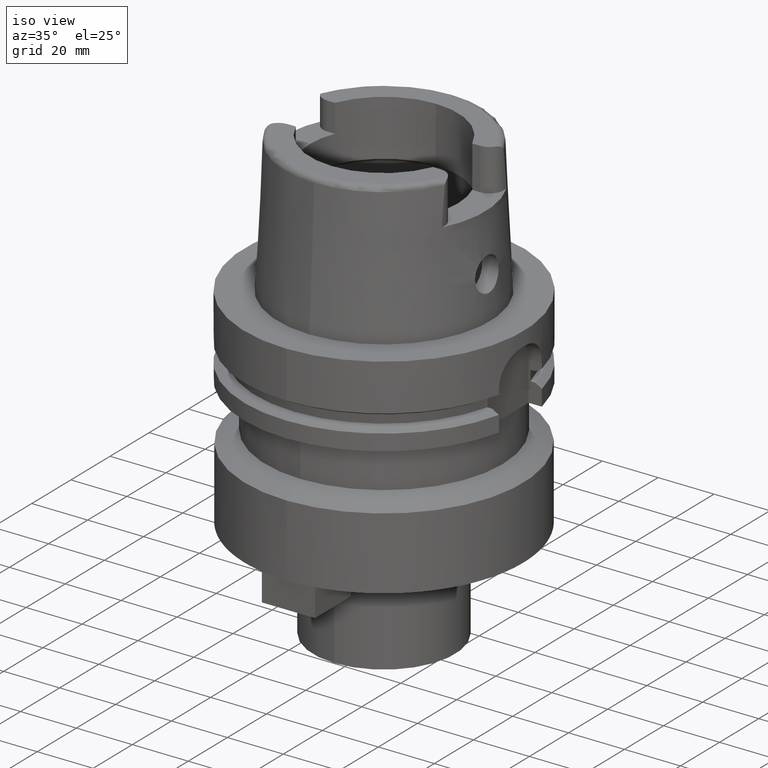
[diagram: clean part render]
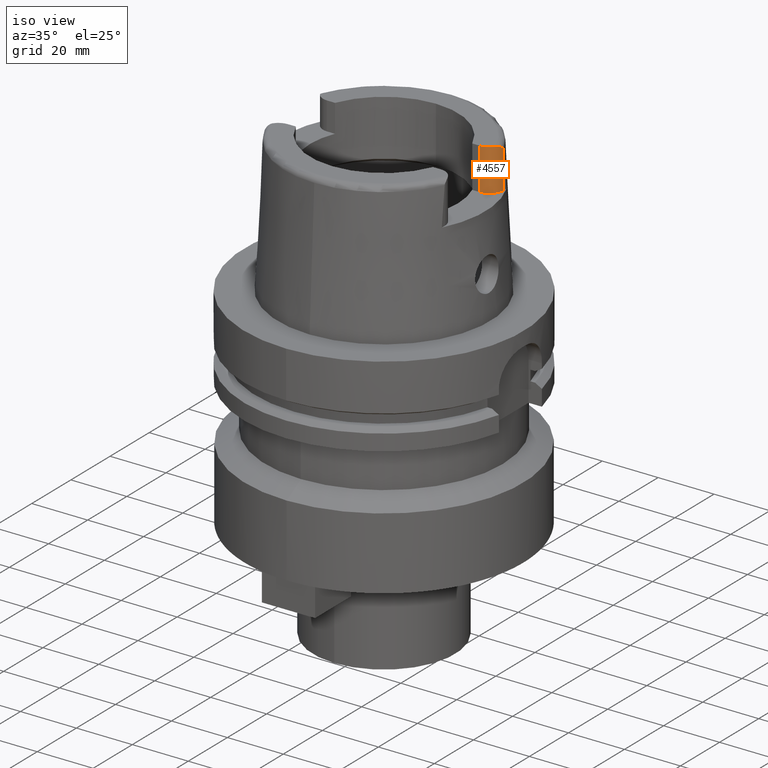
[diagram: same view with one face highlighted and labeled with its STEP entity id]
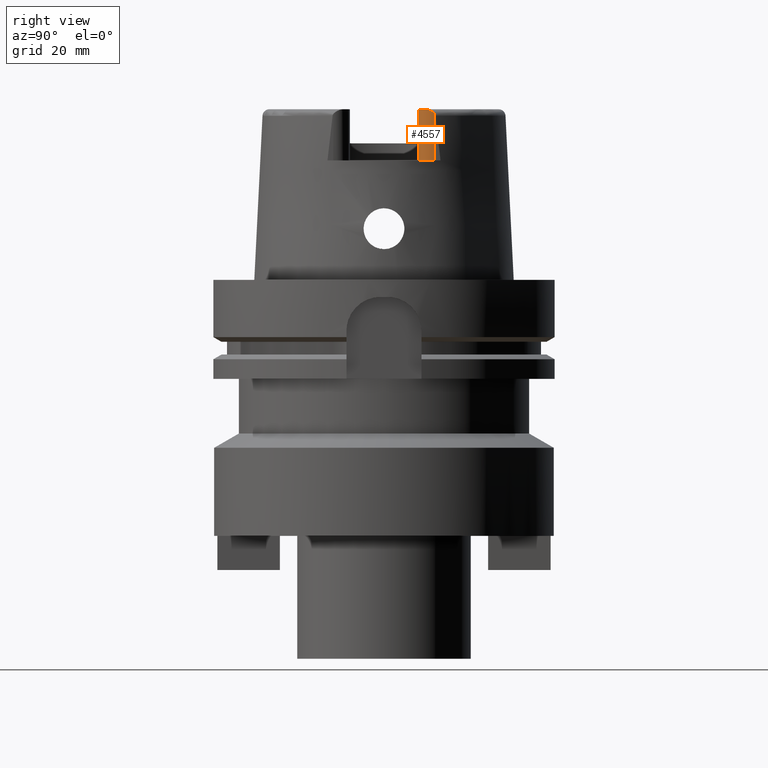
[diagram: same view with one face highlighted and labeled with its STEP entity id]
A machine part, iso view. The second image highlights one B-rep face of the part: STEP entity #4557.
A second angle (right view) of the same face is appended — the face is thin or edge-on in the first view.
In plain terms, the highlighted cylindrical surface (edge-blend (fillet) strip) has radius 4.88 mm, axis along (0, 0, 1).
Its self-contained STEP definition (entity closure, byte-faithful):
#42=CARTESIAN_POINT('',(2.737E1,1.489E1,5.E1));
#43=DIRECTION('',(0.E0,0.E0,-1.E0));
#44=DIRECTION('',(8.163632566569E-1,-5.775387720150E-1,0.E0));
#45=AXIS2_PLACEMENT_3D('',#42,#43,#44);
#424=CARTESIAN_POINT('',(2.737E1,1.489E1,3.5E1));
#425=DIRECTION('',(0.E0,0.E0,1.E0));
#426=DIRECTION('',(0.E0,-1.E0,0.E0));
#427=AXIS2_PLACEMENT_3D('',#424,#425,#426);
#2352=DIRECTION('',(2.098162679624E-14,0.E0,-1.E0));
#2353=VECTOR('',#2352,1.354599893822E1);
#2354=CARTESIAN_POINT('',(3.225E1,1.489E1,4.854599893822E1));
#2355=LINE('',#2354,#2353);
#2359=DIRECTION('',(0.E0,0.E0,1.E0));
#2360=VECTOR('',#2359,1.5E1);
#2361=CARTESIAN_POINT('',(2.737E1,1.001E1,3.5E1));
#2362=LINE('',#2361,#2360);
#2413=CARTESIAN_POINT('',(3.225E1,1.489E1,4.854599893822E1));
#2418=CARTESIAN_POINT('',(3.225E1,1.489E1,4.854599893822E1));
#2419=CARTESIAN_POINT('',(3.225E1,1.484309072665E1,4.861529079288E1));
#2420=CARTESIAN_POINT('',(3.224872170484E1,1.473212529149E1,4.875471570095E1));
#2421=CARTESIAN_POINT('',(3.223735481780E1,1.451182190967E1,4.896855432963E1));
#2422=CARTESIAN_POINT('',(3.221017727391E1,1.424531651566E1,4.917972935517E1));
#2423=CARTESIAN_POINT('',(3.215887309602E1,1.393082129969E1,4.938838321682E1));
#2424=CARTESIAN_POINT('',(3.207430567705E1,1.357227630305E1,4.958751180576E1));
#2425=CARTESIAN_POINT('',(3.194473963980E1,1.317281523913E1,4.976722464540E1));
#2426=CARTESIAN_POINT('',(3.177247948192E1,1.276900858077E1,4.990387351761E1));
#2427=CARTESIAN_POINT('',(3.156429570032E1,1.238409631436E1,4.998523027176E1));
#2428=CARTESIAN_POINT('',(3.142399076718E1,1.217075244304E1,5.E1));
#2429=CARTESIAN_POINT('',(3.135385269249E1,1.207161079257E1,5.E1));
#2459=CARTESIAN_POINT('',(3.135385269249E1,1.207161079257E1,5.E1));
#2461=VERTEX_POINT('',#2459);
#2462=CARTESIAN_POINT('',(2.737E1,1.001E1,5.E1));
#2463=VERTEX_POINT('',#2462);
#2514=VERTEX_POINT('',#2413);
#2536=CARTESIAN_POINT('',(2.737E1,1.001E1,3.5E1));
#2537=VERTEX_POINT('',#2536);
#2538=CARTESIAN_POINT('',(3.225E1,1.489E1,3.5E1));
#2539=VERTEX_POINT('',#2538);
#4543=CARTESIAN_POINT('',(2.737E1,1.489E1,5.E1));
#4544=DIRECTION('',(0.E0,0.E0,1.E0));
#4545=DIRECTION('',(1.E0,0.E0,0.E0));
#4546=AXIS2_PLACEMENT_3D('',#4543,#4544,#4545);
#4547=CYLINDRICAL_SURFACE('',#4546,4.88E0);
#4548=ORIENTED_EDGE('',*,*,#2833,.F.);
#4550=ORIENTED_EDGE('',*,*,#4549,.F.);
#4552=ORIENTED_EDGE('',*,*,#4551,.T.);
#4553=ORIENTED_EDGE('',*,*,#3068,.F.);
#4554=ORIENTED_EDGE('',*,*,#4536,.T.);
#4555=EDGE_LOOP('',(#4548,#4550,#4552,#4553,#4554));
#4556=FACE_OUTER_BOUND('',#4555,.F.);
#46=CIRCLE('',#45,4.88E0);
#428=CIRCLE('',#427,4.88E0);
#2430=B_SPLINE_CURVE_WITH_KNOTS('',3,(#2418,#2419,#2420,#2421,#2422,#2423,#2424,
#2425,#2426,#2427,#2428,#2429),.UNSPECIFIED.,.F.,.F.,(4,1,1,1,1,1,1,1,1,4),
(0.E0,1.111111111111E-1,2.222222222222E-1,3.333333333333E-1,4.444444444444E-1,
5.555555555556E-1,6.666666666667E-1,7.777777777778E-1,8.888888888889E-1,1.E0),
.UNSPECIFIED.);
#2833=EDGE_CURVE('',#2461,#2463,#46,.T.);
#3068=EDGE_CURVE('',#2537,#2539,#428,.T.);
#4536=EDGE_CURVE('',#2537,#2463,#2362,.T.);
#4549=EDGE_CURVE('',#2514,#2461,#2430,.T.);
#4551=EDGE_CURVE('',#2514,#2539,#2355,.T.);
#4557=ADVANCED_FACE('',(#4556),#4547,.T.);